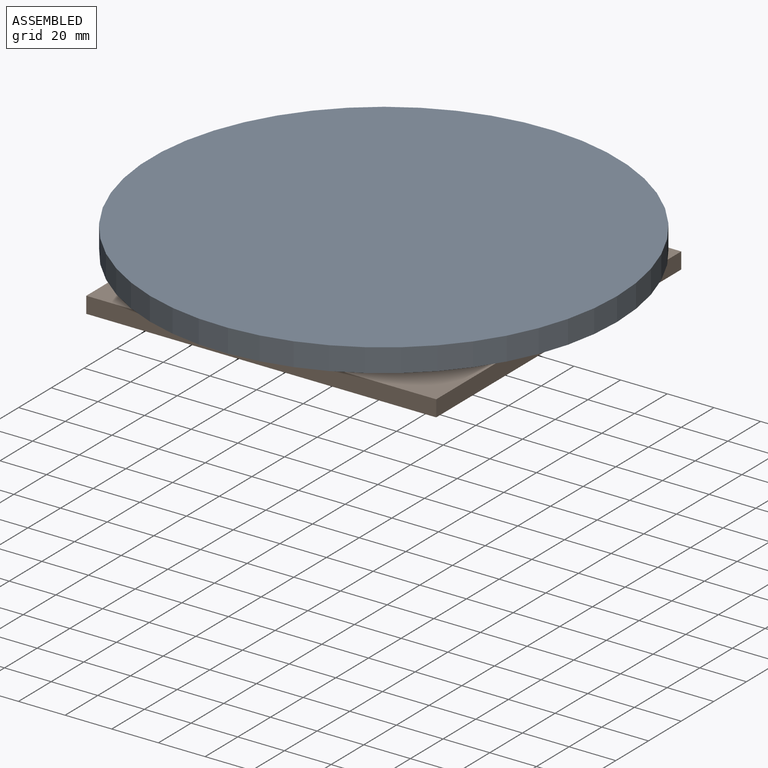
[diagram: assembled view]
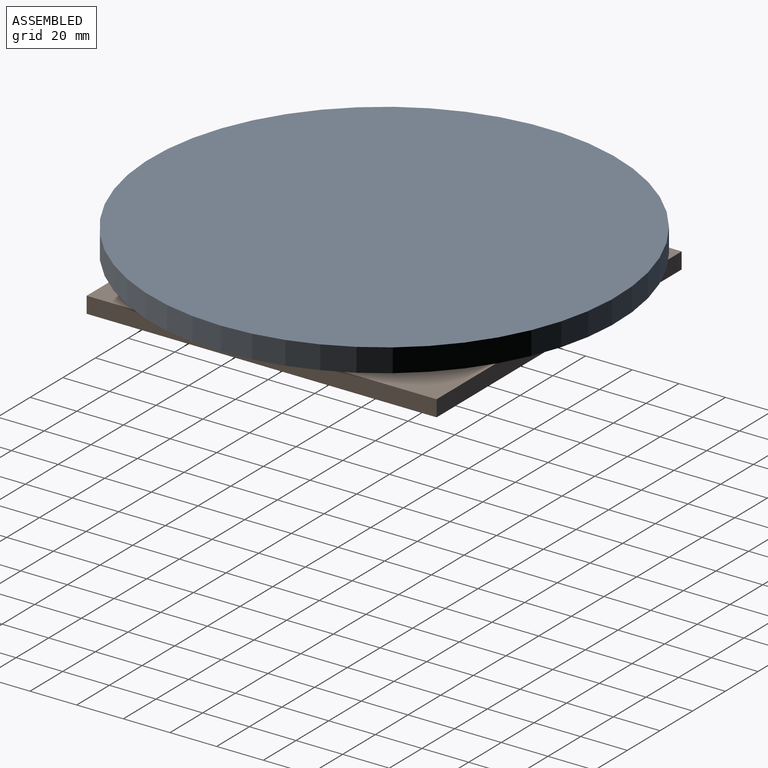
[diagram: assembled view, second angle]
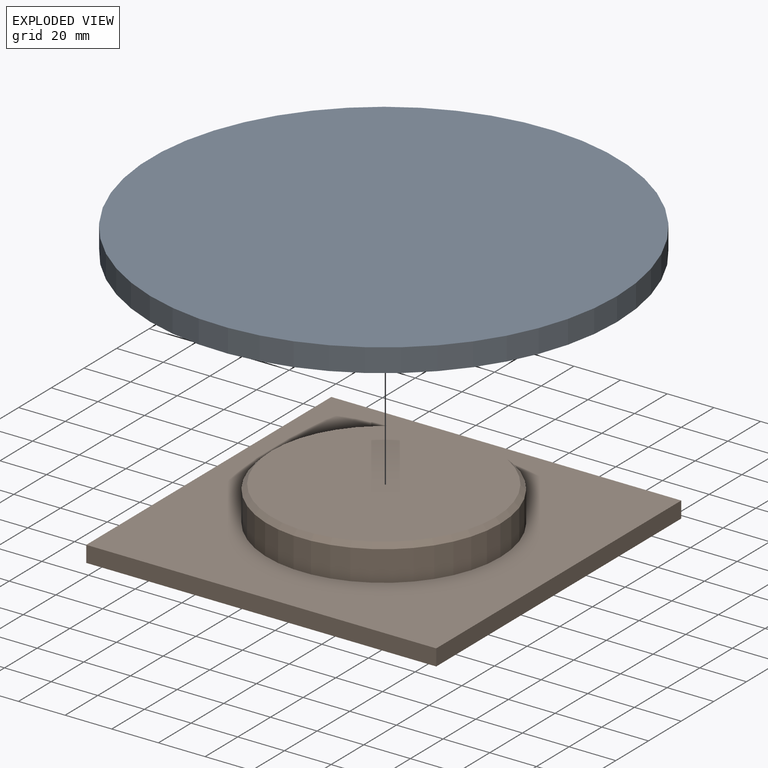
[diagram: exploded view]
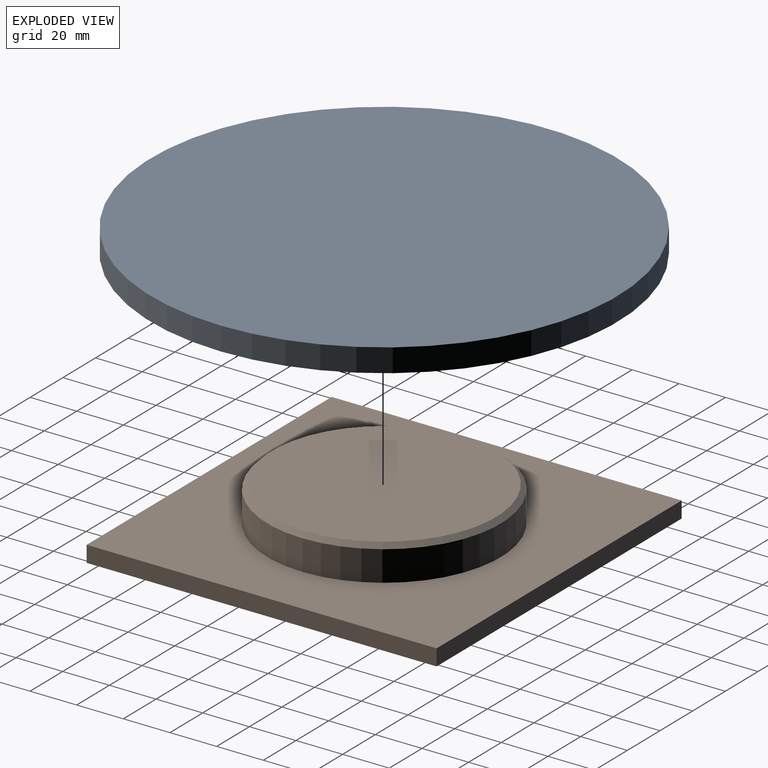
[diagram: exploded view, second angle]
ASSEMBLY  parts=2 mates=2
PART A: 5 faces, bbox 200x200x10 mm
  f0: cylinder r=100mm len=200mm, axis (0,0,-1), area 6283.2mm2, adj f1,f3
  f1: plane 200x200mm, normal (0,0,-1), area 31415.9mm2, adj f0
  f2: cylinder r=50.5mm len=101mm, axis (0,0,-1), area 1586.5mm2, adj f3,f4
  f3: plane 200x200mm, normal (0,0,1), area 23404.1mm2, adj f0,f2
  f4: plane 101x101mm, normal (0,0,1), area 8011.8mm2, adj f2
PART B: 9 faces, bbox 150x150x22 mm
  f0: plane 150x7mm, normal (0,1,0), area 1050mm2, adj f1,f3,f4,f5
  f1: plane 150x7mm, normal (-1,0,0), area 1050mm2, adj f0,f2,f4,f5
  f2: plane 150x7mm, normal (0,-1,0), area 1050mm2, adj f1,f3,f4,f5
  f3: plane 150x7mm, normal (1,0,0), area 1050mm2, adj f0,f2,f4,f5
  f4: plane 150x150mm, normal (0,0,1), area 14646mm2, adj f0,f1,f2,f3,f6
  f5: plane 150x150mm, normal (0,0,-1), area 22500mm2, adj f0,f1,f2,f3
  f6: cylinder r=50mm len=100mm, axis (0,0,-1), area 4084.1mm2, adj f4,f8
  f7: plane 96x96mm, normal (0,0,1), area 7238.2mm2, adj f8
  f8: cone r=48mm half-angle=45deg, axis (0,0,-1), area 870.8mm2, adj f6,f7
PLACE A rot(axis=(1,0,0),180deg) t=(-26.24,-4.59,29.84)mm
PLACE B t=(-26.24,-4.59,4.84)mm fixed
MATE planar A.f0 <-> B.f6  axis (0,0,1) through (-26.24,-4.59,29.84)mm
MATE cylindrical A.f2 <-> B.f6  axis (0,0,1) through (-26.24,-4.59,22.34)mm
